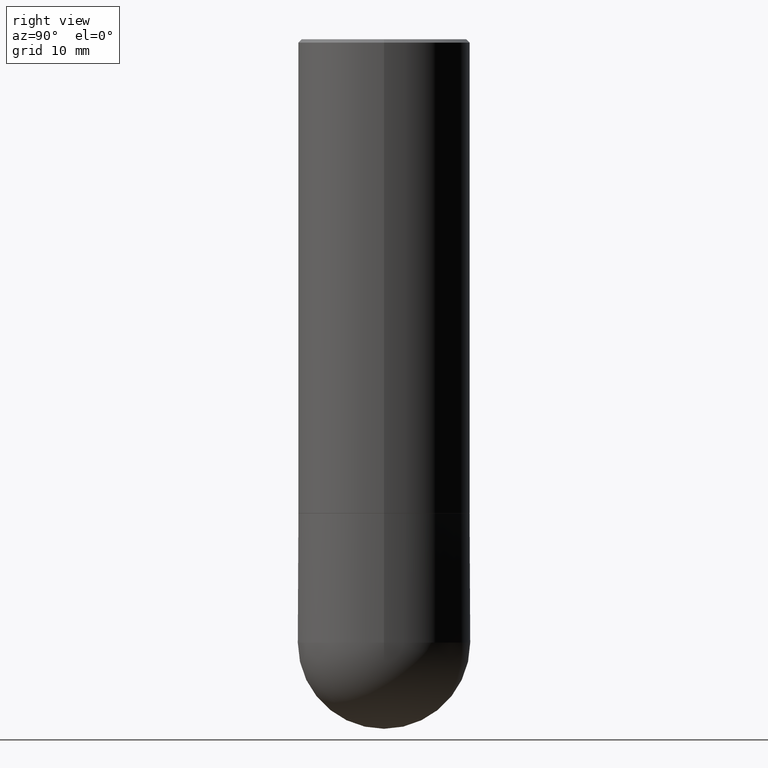
[diagram: clean part render]
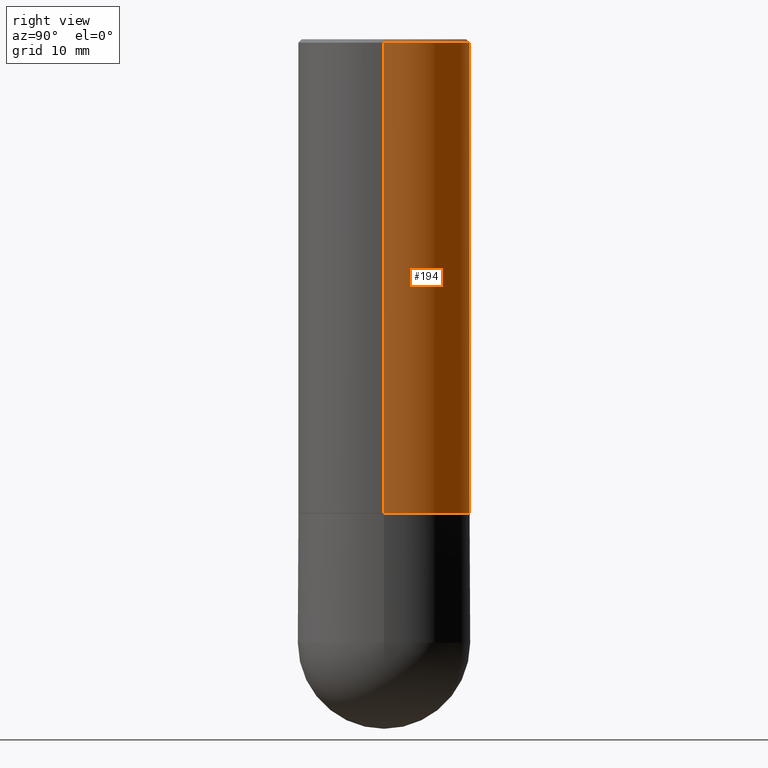
[diagram: same view with one face highlighted and labeled with its STEP entity id]
A machine part, right view. The second image highlights one B-rep face of the part: STEP entity #194.
In plain terms, the highlighted cylindrical surface (partial cylindrical patch) has radius 12.7 mm, axis along (-0, 0, 1).
Its self-contained STEP definition (entity closure, byte-faithful):
#11 = CIRCLE ( 'NONE', #77, 0.5000000000000000000 ) ;
#20 = VERTEX_POINT ( 'NONE', #361 ) ;
#27 = DIRECTION ( 'NONE',  ( -2.445468806185136877E-29, 3.491481338843145188E-15, 1.000000000000000000 ) ) ;
#33 = AXIS2_PLACEMENT_3D ( 'NONE', #270, #300, #241 ) ;
#41 = LINE ( 'NONE', #207, #245 ) ;
#61 = ORIENTED_EDGE ( 'NONE', *, *, #323, .F. ) ;
#72 = EDGE_CURVE ( 'NONE', #206, #261, #97, .T. ) ;
#77 = AXIS2_PLACEMENT_3D ( 'NONE', #277, #152, #343 ) ;
#97 = LINE ( 'NONE', #256, #119 ) ;
#98 = CIRCLE ( 'NONE', #209, 0.5000000000000002220 ) ;
#119 = VECTOR ( 'NONE', #27, 39.37007874015748143 ) ;
#131 = ORIENTED_EDGE ( 'NONE', *, *, #72, .F. ) ;
#134 = CARTESIAN_POINT ( 'NONE',  ( 0.5000000000000000000, -3.500078625662629079E-15, -0.02000000000000010797 ) ) ;
#138 = CYLINDRICAL_SURFACE ( 'NONE', #33, 0.5000000000000001110 ) ;
#150 = EDGE_LOOP ( 'NONE', ( #153, #410, #61, #131 ) ) ;
#152 = DIRECTION ( 'NONE',  ( -2.445468806185136597E-29, 3.491481338843145583E-15, 1.000000000000000000 ) ) ;
#153 = ORIENTED_EDGE ( 'NONE', *, *, #269, .T. ) ;
#164 = EDGE_CURVE ( 'NONE', #20, #254, #41, .T. ) ;
#179 = DIRECTION ( 'NONE',  ( -2.445468806185136877E-29, 3.491481338843145188E-15, 1.000000000000000000 ) ) ;
#194 = ADVANCED_FACE ( 'NONE', ( #334 ), #138, .T. ) ;
#206 = VERTEX_POINT ( 'NONE', #208 ) ;
#207 = CARTESIAN_POINT ( 'NONE',  ( -0.5000000000000001110, 3.552713678800501718E-15, -2.459467545127453732E-29 ) ) ;
#208 = CARTESIAN_POINT ( 'NONE',  ( 0.5000000000000002220, -1.308956353932294336E-14, -2.749000000000000110 ) ) ;
#209 = AXIS2_PLACEMENT_3D ( 'NONE', #211, #396, #333 ) ;
#210 = CARTESIAN_POINT ( 'NONE',  ( -0.5000000000000000000, 3.421651712066270057E-15, -0.02000000000000010797 ) ) ;
#211 = CARTESIAN_POINT ( 'NONE',  ( 6.722593748202941159E-29, -9.598082200479808430E-15, -2.749000000000000110 ) ) ;
#241 = DIRECTION ( 'NONE',  ( 1.000000000000000000, -6.982962677686267499E-15, 4.876176775795935793E-29 ) ) ;
#245 = VECTOR ( 'NONE', #179, 39.37007874015748143 ) ;
#254 = VERTEX_POINT ( 'NONE', #210 ) ;
#256 = CARTESIAN_POINT ( 'NONE',  ( 0.5000000000000001110, -3.491481338843134539E-15, 2.438088387897968457E-29 ) ) ;
#261 = VERTEX_POINT ( 'NONE', #134 ) ;
#269 = EDGE_CURVE ( 'NONE', #206, #20, #98, .T. ) ;
#270 = CARTESIAN_POINT ( 'NONE',  ( 0.000000000000000000, 0.000000000000000000, 0.000000000000000000 ) ) ;
#277 = CARTESIAN_POINT ( 'NONE',  ( 4.890937612370299433E-31, -6.982962677686328587E-17, -0.02000000000000010797 ) ) ;
#300 = DIRECTION ( 'NONE',  ( -2.445468806185136597E-29, 3.491481338843145583E-15, 1.000000000000000000 ) ) ;
#323 = EDGE_CURVE ( 'NONE', #261, #254, #11, .T. ) ;
#333 = DIRECTION ( 'NONE',  ( 1.000000000000000000, -6.982962677686267499E-15, 0.000000000000000000 ) ) ;
#334 = FACE_OUTER_BOUND ( 'NONE', #150, .T. ) ;
#343 = DIRECTION ( 'NONE',  ( 1.000000000000000000, -6.982962677686266711E-15, 0.000000000000000000 ) ) ;
#361 = CARTESIAN_POINT ( 'NONE',  ( -0.5000000000000002220, -1.281242234827831779E-15, -2.749000000000000110 ) ) ;
#396 = DIRECTION ( 'NONE',  ( -2.445468806185136597E-29, 3.491481338843145583E-15, 1.000000000000000000 ) ) ;
#410 = ORIENTED_EDGE ( 'NONE', *, *, #164, .T. ) ;